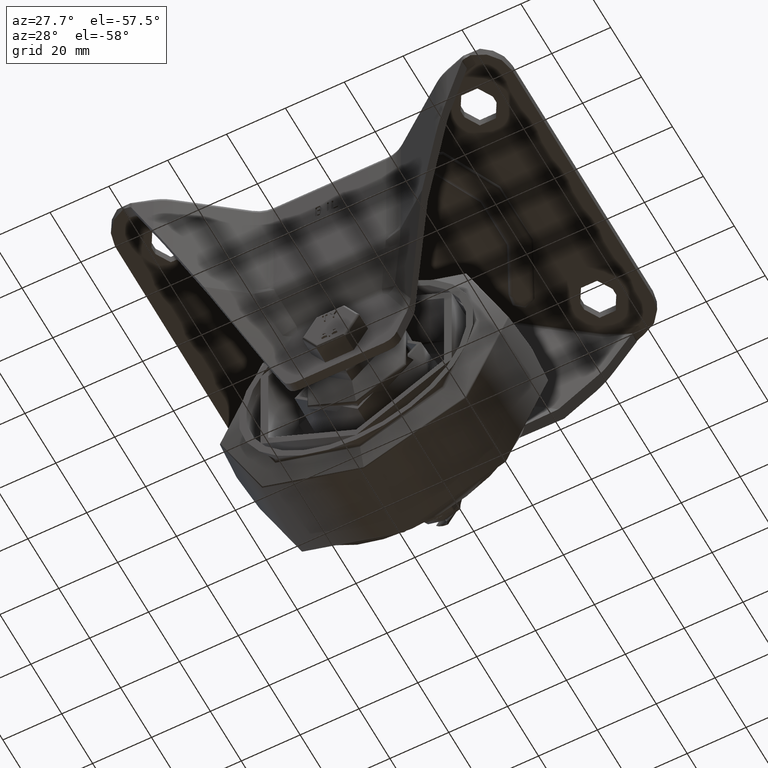
[diagram: clean part render]
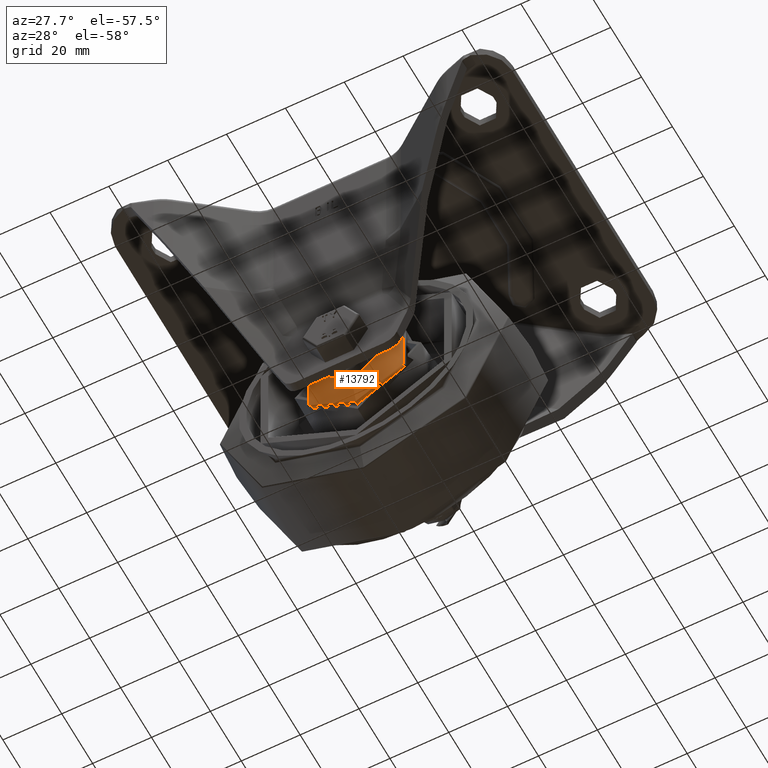
[diagram: same view with one face highlighted and labeled with its STEP entity id]
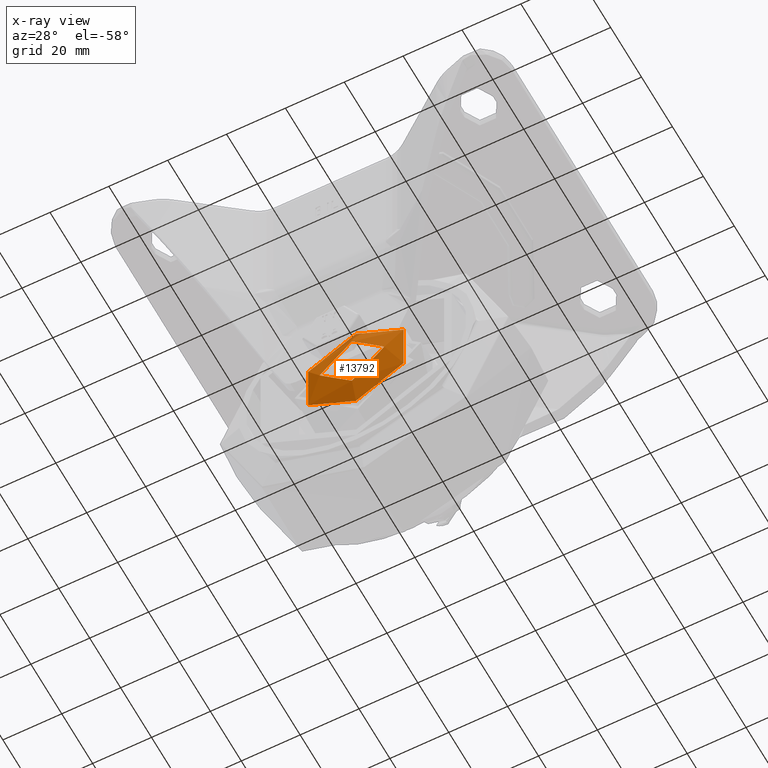
[diagram: x-ray of the same camera — body ghosted, the highlighted face saturated]
A machine part, auxiliary view. The second image highlights one B-rep face of the part: STEP entity #13792.
The next image is the same camera in x-ray: the body ghosted, the highlighted face saturated — about 2% of this face is hidden behind the body in this view.
In plain terms, the highlighted conical surface has half-angle 71.565 deg.
Its self-contained STEP definition (entity closure, byte-faithful):
#57=CONICAL_SURFACE('',#15069,15.125,1.24904577239825);
#2233=FACE_OUTER_BOUND('',#3172,.T.);
#3172=EDGE_LOOP('',(#12040,#12041,#12042,#12043,#12044));
#4029=LINE('',#34927,#4888);
#4888=VECTOR('',#17826,15.125);
#5522=CIRCLE('',#15058,11.);
#5530=CIRCLE('',#15070,18.7371708245126);
#5531=CIRCLE('',#15071,18.7371708245126);
#6635=VERTEX_POINT('',#34900);
#6643=VERTEX_POINT('',#34924);
#6644=VERTEX_POINT('',#34925);
#8473=EDGE_CURVE('',#6635,#6635,#5522,.T.);
#8485=EDGE_CURVE('',#6643,#6644,#5530,.T.);
#8486=EDGE_CURVE('',#6643,#6635,#4029,.T.);
#8487=EDGE_CURVE('',#6644,#6643,#5531,.T.);
#12040=ORIENTED_EDGE('',*,*,#8485,.F.);
#12041=ORIENTED_EDGE('',*,*,#8486,.T.);
#12042=ORIENTED_EDGE('',*,*,#8473,.T.);
#12043=ORIENTED_EDGE('',*,*,#8486,.F.);
#12044=ORIENTED_EDGE('',*,*,#8487,.F.);
#13792=ADVANCED_FACE('',(#2233),#57,.T.);
#15058=AXIS2_PLACEMENT_3D('',#34901,#17796,#17797);
#15069=AXIS2_PLACEMENT_3D('',#34923,#17822,#17823);
#15070=AXIS2_PLACEMENT_3D('',#34926,#17824,#17825);
#15071=AXIS2_PLACEMENT_3D('',#34928,#17827,#17828);
#17796=DIRECTION('center_axis',(0.,1.,0.));
#17797=DIRECTION('ref_axis',(0.,0.,1.));
#17822=DIRECTION('center_axis',(0.,1.,0.));
#17823=DIRECTION('ref_axis',(0.,0.,1.));
#17824=DIRECTION('center_axis',(0.,1.,0.));
#17825=DIRECTION('ref_axis',(1.22464679914735E-16,0.,-1.));
#17826=DIRECTION('',(1.16180196436211E-16,-0.316227766016842,0.948683298050512));
#17827=DIRECTION('center_axis',(0.,1.,0.));
#17828=DIRECTION('ref_axis',(1.22464679914735E-16,0.,-1.));
#34900=CARTESIAN_POINT('',(1.34711147906209E-15,-8.25,-11.));
#34901=CARTESIAN_POINT('Origin',(0.,-8.25,0.));
#34923=CARTESIAN_POINT('Origin',(0.,-6.875,0.));
#34924=CARTESIAN_POINT('',(4.58928325506331E-15,-5.67094305849578,-18.7371708245126));
#34925=CARTESIAN_POINT('',(6.00478999977421E-30,-5.67094305849578,18.7371708245126));
#34926=CARTESIAN_POINT('Origin',(0.,-5.67094305849578,0.));
#34927=CARTESIAN_POINT('',(-1.85227828371037E-15,-6.875,-15.125));
#34928=CARTESIAN_POINT('Origin',(0.,-5.67094305849578,0.));